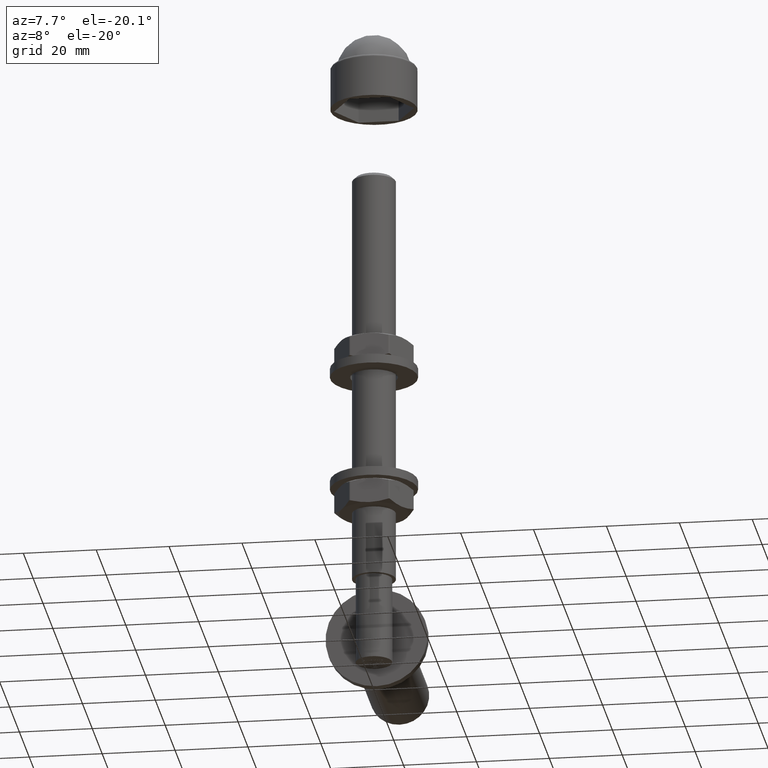
[diagram: clean part render]
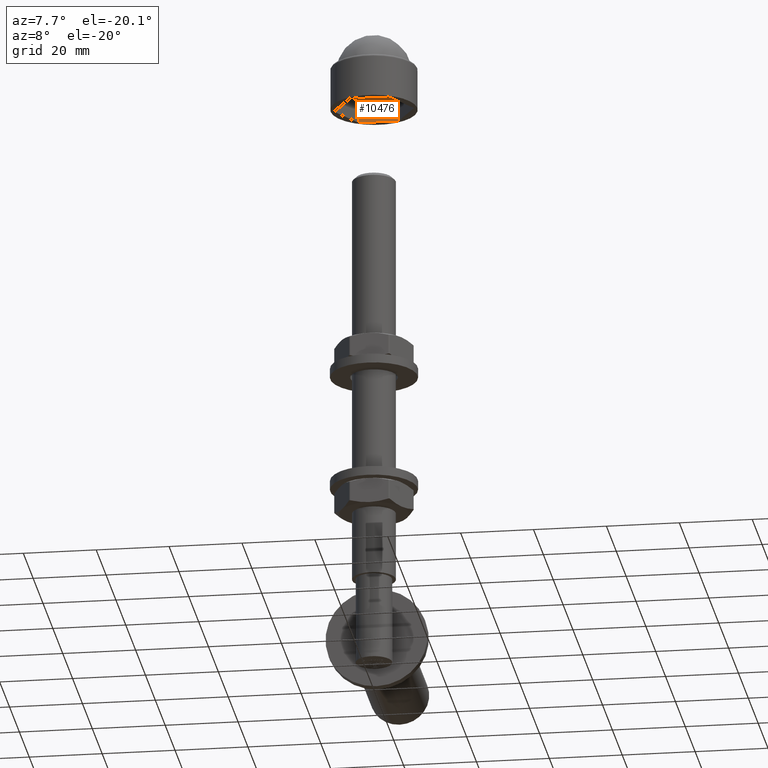
[diagram: same view with one face highlighted and labeled with its STEP entity id]
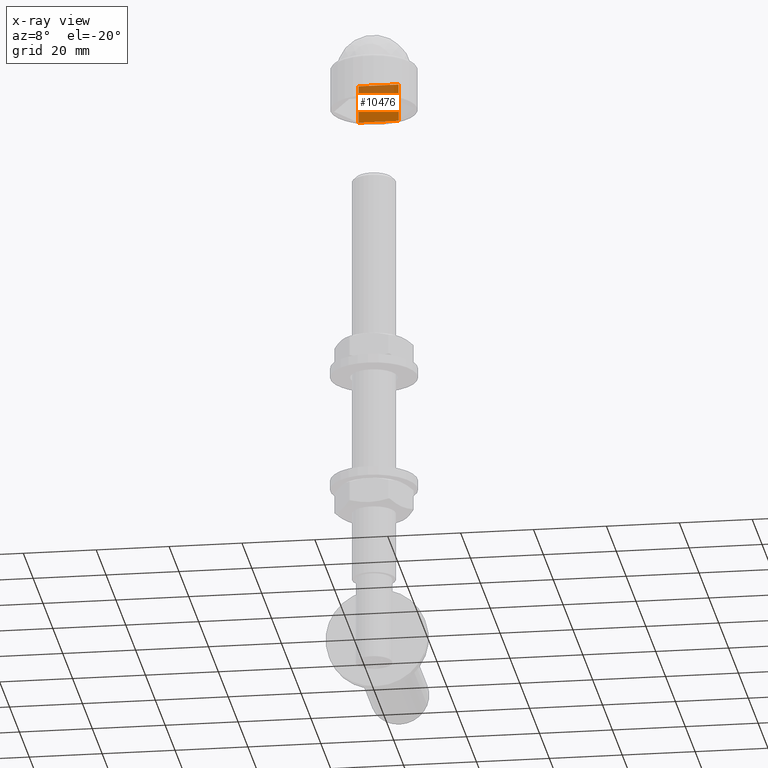
[diagram: x-ray of the same camera — body ghosted, the highlighted face saturated]
A machine part, auxiliary view. The second image highlights one B-rep face of the part: STEP entity #10476.
The next image is the same camera in x-ray: the body ghosted, the highlighted face saturated — about 29% of this face is hidden behind the body in this view.
In plain terms, the highlighted planar face has unit normal (-0, 1, 0).
Its self-contained STEP definition (entity closure, byte-faithful):
#424 = CARTESIAN_POINT ( 'NONE',  ( -5.484827557301445999, 0.000000000000000000, -9.499999999999998224 ) ) ;
#518 = CARTESIAN_POINT ( 'NONE',  ( 4.283594138071522132E-15, 10.49999999999999645, -9.499999999999996447 ) ) ;
#708 = EDGE_CURVE ( 'NONE', #14151, #12682, #4466, .T. ) ;
#1314 = LINE ( 'NONE', #7866, #10297 ) ;
#1500 = VERTEX_POINT ( 'NONE', #424 ) ;
#3251 = CARTESIAN_POINT ( 'NONE',  ( 5.484827557301446888, -6.721244214731236963E-25, -9.499999999999996447 ) ) ;
#3359 = VECTOR ( 'NONE', #3439, 1000.000000000000000 ) ;
#3424 = VECTOR ( 'NONE', #10097, 1000.000000000000000 ) ;
#3439 = DIRECTION ( 'NONE',  ( 1.000000000000000000, 0.000000000000000000, 1.581383788144377954E-16 ) ) ;
#3479 = EDGE_CURVE ( 'NONE', #13304, #1500, #14379, .T. ) ;
#4098 = DIRECTION ( 'NONE',  ( 1.581383788144378200E-16, 0.000000000000000000, -1.000000000000000000 ) ) ;
#4218 = VERTEX_POINT ( 'NONE', #3251 ) ;
#4466 = LINE ( 'NONE', #9262, #8467 ) ;
#5423 = CARTESIAN_POINT ( 'NONE',  ( -5.484827557301445999, 10.50000000000000000, -9.499999999999998224 ) ) ;
#6213 = AXIS2_PLACEMENT_3D ( 'NONE', #13589, #4098, #10065 ) ;
#6415 = EDGE_CURVE ( 'NONE', #13304, #14151, #7033, .T. ) ;
#7033 = LINE ( 'NONE', #13951, #3359 ) ;
#7392 = ORIENTED_EDGE ( 'NONE', *, *, #708, .F. ) ;
#7437 = FACE_OUTER_BOUND ( 'NONE', #14950, .T. ) ;
#7454 = DIRECTION ( 'NONE',  ( 1.000000000000000000, 0.000000000000000000, 1.581383788144377954E-16 ) ) ;
#7670 = EDGE_CURVE ( 'NONE', #12682, #4218, #1314, .T. ) ;
#7866 = CARTESIAN_POINT ( 'NONE',  ( 5.484827557301446888, 10.50000000000000000, -9.499999999999996447 ) ) ;
#8131 = DIRECTION ( 'NONE',  ( 1.000000000000000000, 0.000000000000000000, 1.581383788144377954E-16 ) ) ;
#8467 = VECTOR ( 'NONE', #8131, 1000.000000000000000 ) ;
#9262 = CARTESIAN_POINT ( 'NONE',  ( -5.484827557301445999, 10.50000000000000000, -9.499999999999998224 ) ) ;
#9771 = LINE ( 'NONE', #10904, #10522 ) ;
#10065 = DIRECTION ( 'NONE',  ( -1.000000000000000000, 0.000000000000000000, -1.581383788144378200E-16 ) ) ;
#10097 = DIRECTION ( 'NONE',  ( -0.000000000000000000, -1.000000000000000000, -0.000000000000000000 ) ) ;
#10219 = DIRECTION ( 'NONE',  ( -0.000000000000000000, -1.000000000000000000, -0.000000000000000000 ) ) ;
#10297 = VECTOR ( 'NONE', #10219, 1000.000000000000000 ) ;
#10476 = ADVANCED_FACE ( 'NONE', ( #7437 ), #14657, .F. ) ;
#10522 = VECTOR ( 'NONE', #7454, 1000.000000000000000 ) ;
#10706 = ORIENTED_EDGE ( 'NONE', *, *, #11960, .T. ) ;
#10904 = CARTESIAN_POINT ( 'NONE',  ( -5.484827557301445999, 0.000000000000000000, -9.499999999999998224 ) ) ;
#10910 = ORIENTED_EDGE ( 'NONE', *, *, #7670, .F. ) ;
#11727 = CARTESIAN_POINT ( 'NONE',  ( 5.484827557301446888, 10.50000000000000000, -9.499999999999996447 ) ) ;
#11760 = ORIENTED_EDGE ( 'NONE', *, *, #6415, .F. ) ;
#11960 = EDGE_CURVE ( 'NONE', #1500, #4218, #9771, .T. ) ;
#12682 = VERTEX_POINT ( 'NONE', #11727 ) ;
#13304 = VERTEX_POINT ( 'NONE', #14698 ) ;
#13589 = CARTESIAN_POINT ( 'NONE',  ( -5.484827557301445999, 10.50000000000000000, -9.499999999999998224 ) ) ;
#13951 = CARTESIAN_POINT ( 'NONE',  ( -5.484827557301445999, 10.50000000000000000, -9.499999999999998224 ) ) ;
#14151 = VERTEX_POINT ( 'NONE', #518 ) ;
#14379 = LINE ( 'NONE', #5423, #3424 ) ;
#14657 = PLANE ( 'NONE',  #6213 ) ;
#14698 = CARTESIAN_POINT ( 'NONE',  ( -5.484827557301445999, 10.50000000000000000, -9.499999999999998224 ) ) ;
#14950 = EDGE_LOOP ( 'NONE', ( #10706, #10910, #7392, #11760, #15147 ) ) ;
#15147 = ORIENTED_EDGE ( 'NONE', *, *, #3479, .T. ) ;